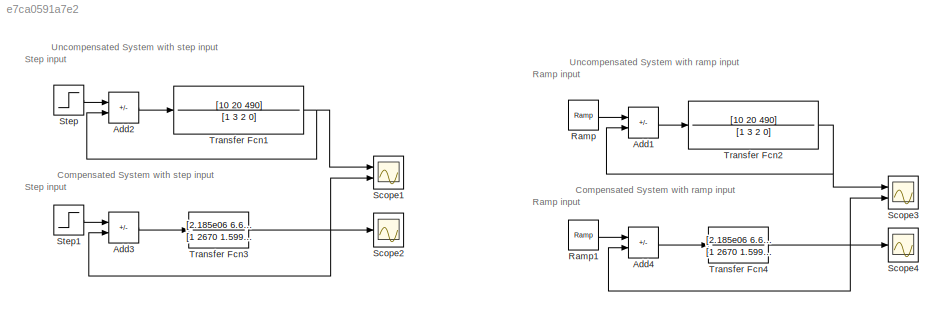
MODEL slx_e7ca0591a7e2
KIND model
CONFIG AbsTol = auto
CONFIG EnableMultiTasking = off
CONFIG FixedStep = auto
CONFIG MaxStep = auto
CONFIG MinStep = auto
CONFIG RelTol = 1e-3
CONFIG SampleTimeConstraint = Unconstrained
CONFIG SolverName = VariableStepAuto
CONFIG StartTime = 0.0
CONFIG StopTime = 2
BLOCK [Sum] Add1
  IconShape = rectangular
  Inputs = +-
  Ports = [2, 1]
BLOCK [Sum] Add2
  IconShape = rectangular
  Inputs = +-
  Ports = [2, 1]
BLOCK [Sum] Add3
  IconShape = rectangular
  Inputs = +-
  Ports = [2, 1]
BLOCK [Sum] Add4
  IconShape = rectangular
  Inputs = +-
  Ports = [2, 1]
BLOCK [Reference] Ramp  REF=simulink/Sources/Ramp
  Ports = [0, 1]
  SourceBlock = simulink/Sources/Ramp
  SourceType = Ramp
BLOCK [Reference] Ramp1  REF=simulink/Sources/Ramp
  Ports = [0, 1]
  SourceBlock = simulink/Sources/Ramp
  SourceType = Ramp
BLOCK [Scope] Scope1
  Floating = off
  NumInputPorts = 2
  Ports = [2]
  ScopeSpecificationString = Simulink.scopes.TimeScopeBlockCfg('CurrentConfiguration', extmgr.ConfigurationSet(extmgr.Configuration('Core','General UI',true),extmgr.Configuration('Core','Source UI',true),extmgr.Configuration('Sources','WiredSimulink',true,'SampleTime','0.001'),extmgr.Configuration('Visuals','Time Domain',true,'SerializedDisplays',{struct('MinYLimReal','-0.3057','MaxYLimReal','2.10434','YLabelReal','','MinYLim...<+1421ch>
BLOCK [Scope] Scope2
  Floating = off
  NumInputPorts = 1
  Ports = [1]
  ScopeSpecificationString = Simulink.scopes.TimeScopeBlockCfg('CurrentConfiguration', extmgr.ConfigurationSet(extmgr.Configuration('Core','General UI',true),extmgr.Configuration('Core','Source UI',true),extmgr.Configuration('Sources','WiredSimulink',true,'SampleTime','0.001','DataLoggingVariableName','ScopeData1'),extmgr.Configuration('Visuals','Time Domain',true,'SerializedDisplays',{struct('MinYLimReal','-0.21709','MaxYLim...<+1418ch>
BLOCK [Scope] Scope3
  Floating = off
  NumInputPorts = 2
  Ports = [2]
  ScopeSpecificationString = Simulink.scopes.TimeScopeBlockCfg('CurrentConfiguration', extmgr.ConfigurationSet(extmgr.Configuration('Core','General UI',true),extmgr.Configuration('Core','Source UI',true),extmgr.Configuration('Sources','WiredSimulink',true,'DataLoggingVariableName','ScopeData2','SampleTime','0.001'),extmgr.Configuration('Visuals','Time Domain',true,'SerializedDisplays',{struct('MinYLimReal','-0.2525','MaxYLimR...<+1457ch>
BLOCK [Scope] Scope4
  Floating = off
  NumInputPorts = 1
  Ports = [1]
  ScopeSpecificationString = Simulink.scopes.TimeScopeBlockCfg('CurrentConfiguration', extmgr.ConfigurationSet(extmgr.Configuration('Core','General UI',true),extmgr.Configuration('Core','Source UI',true),extmgr.Configuration('Sources','WiredSimulink',true,'SampleTime','0.001','DataLoggingVariableName','ScopeData2'),extmgr.Configuration('Visuals','Time Domain',true,'SerializedDisplays',{struct('MinYLimReal','-0.24839','MaxYLim...<+1418ch>
BLOCK [Step] Step
  SampleTime = 0
  Time = 0
BLOCK [Step] Step1
  SampleTime = 0
  Time = 0
BLOCK [TransferFcn] Transfer Fcn1
  Denominator = [1 3 2 0]
  Numerator = [10 20 490]
BLOCK [TransferFcn] Transfer Fcn2
  Denominator = [1 3 2 0]
  Numerator = [10 20 490]
BLOCK [TransferFcn] Transfer Fcn3
  Denominator = [1 2670 1.599e04 1.332e04 0]
  Numerator = [2.185e06 6.661e05]
BLOCK [TransferFcn] Transfer Fcn4
  Denominator = [1 2670 1.599e04 1.332e04 0]
  Numerator = [2.185e06 6.661e05]
ANNOTATION (root): Compensated System with ramp input
ANNOTATION (root): Compensated System with step input
ANNOTATION (root): Ramp input
ANNOTATION (root): Step input
ANNOTATION (root): Uncompensated System with ramp input
ANNOTATION (root): Uncompensated System with step input
LINE Add1:1 -> Transfer Fcn2:1
LINE Add2:1 -> Transfer Fcn1:1
LINE Add3:1 -> Transfer Fcn3:1
LINE Add4:1 -> Transfer Fcn4:1
LINE Ramp1:1 -> Add4:1
LINE Ramp:1 -> Add1:1
LINE Step1:1 -> Add3:1
LINE Step:1 -> Add2:1
NET Transfer Fcn1:1 -> Add2:2, Scope1:1
NET Transfer Fcn2:1 -> Add1:2, Scope3:1
NET Transfer Fcn3:1 -> Add3:2, Scope1:2, Scope2:1
NET Transfer Fcn4:1 -> Add4:2, Scope3:2, Scope4:1
note: NET lines group one-source signal fan-out (src -> all destinations, sorted); 1:1 wires keep LINE
